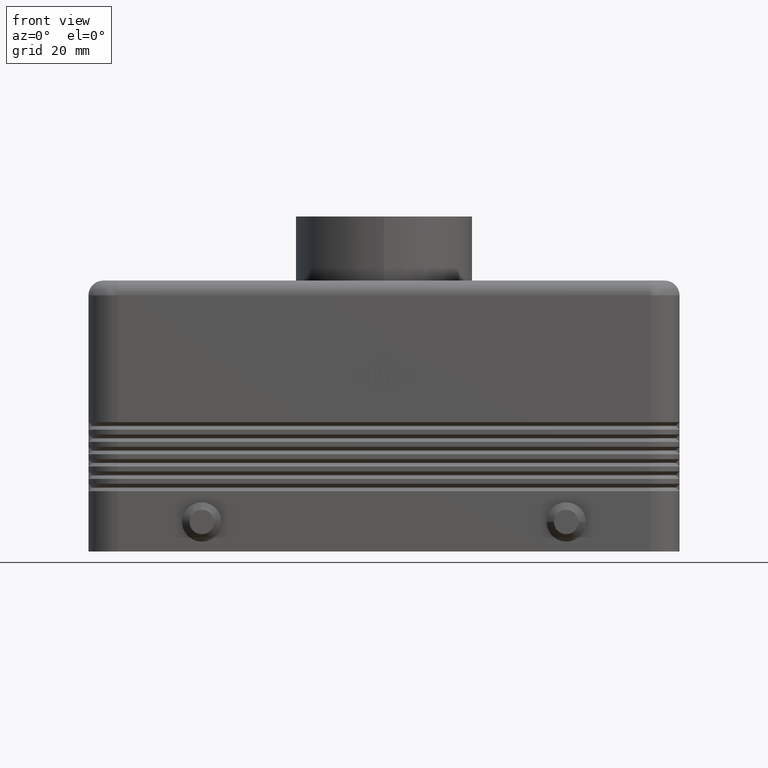
[diagram: clean part render]
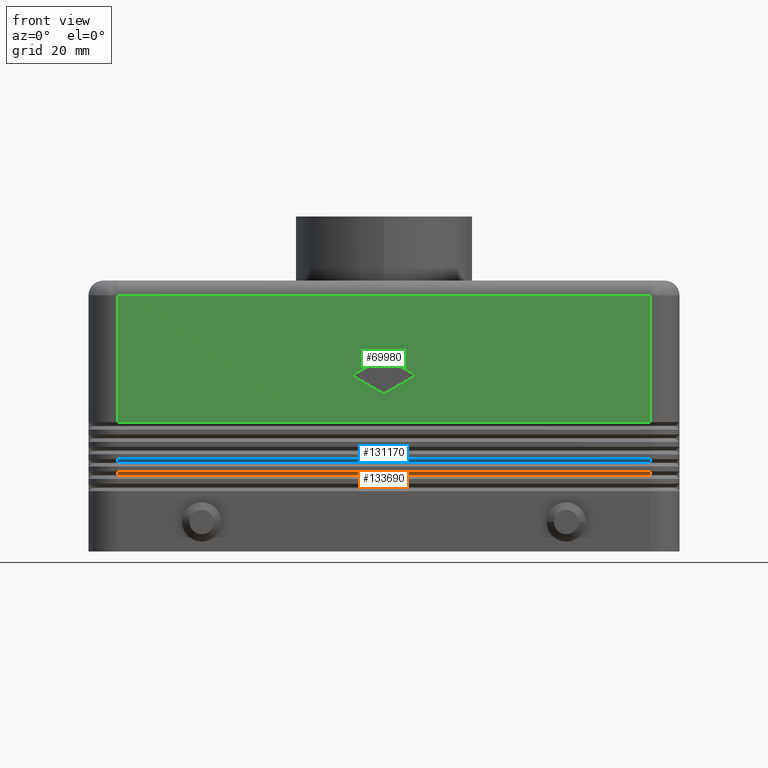
[diagram: same view with three faces highlighted in distinct colors, each labeled with its STEP entity id]
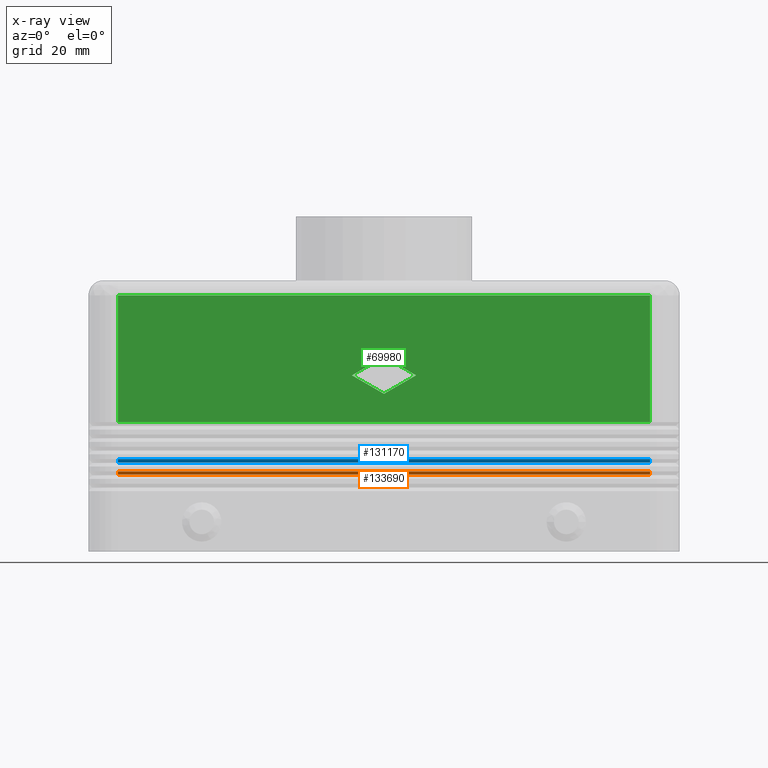
[diagram: x-ray of the same camera — body ghosted, the three highlighted faces saturated]
A machine part, front view with three faces highlighted in distinct colors.
The next image is the same camera in x-ray (body ghosted, the three faces saturated) — at least one of them is partly hidden behind the body in this view.
Their STEP definitions:

[orange] entity #133690 — the highlighted planar face has unit normal (0, -0.7071, -0.7071).
#4090=CARTESIAN_POINT('',(54.,-20.8,15.55));
#4100=DIRECTION('',(-1.435513E-14,-0.707106781186556,0.707106781186539))
;
#4110=VECTOR('',#4100,0.989949493661183);
#4120=LINE('',#4090,#4110);
#4130=CARTESIAN_POINT('',(54.,-20.8,15.55));
#4140=VERTEX_POINT('',#4130);
#4150=CARTESIAN_POINT('',(54.,-21.5,16.25));
#4160=VERTEX_POINT('',#4150);
#4170=EDGE_CURVE('',#4140,#4160,#4120,.T.);
#4730=CARTESIAN_POINT('',(-54.,-21.5,16.25));
#4740=VERTEX_POINT('',#4730);
#4770=CARTESIAN_POINT('',(-54.,-21.5,16.25));
#4780=DIRECTION('',(-7.177566E-15,0.707106781186546,-0.707106781186549))
;
#4790=VECTOR('',#4780,0.989949493661168);
#4800=LINE('',#4770,#4790);
#4810=CARTESIAN_POINT('',(-54.,-20.8,15.55));
#4820=VERTEX_POINT('',#4810);
#4830=EDGE_CURVE('',#4740,#4820,#4800,.T.);
#58120=CARTESIAN_POINT('',(-54.,-20.8,15.55));
#58130=DIRECTION('',(1.,0.,0.));
#58140=VECTOR('',#58130,108.);
#58150=LINE('',#58120,#58140);
#58160=EDGE_CURVE('',#4820,#4140,#58150,.T.);
#130580=CARTESIAN_POINT('',(54.,-21.5,16.25));
#130590=DIRECTION('',(-1.,0.,0.));
#130600=VECTOR('',#130590,108.);
#130610=LINE('',#130580,#130600);
#130620=EDGE_CURVE('',#4160,#4740,#130610,.T.);
#133580=CARTESIAN_POINT('',(4.857226E-15,-21.15,15.9));
#133590=DIRECTION('',(4.570837E-34,-0.70710678118655,-0.707106781186545)
);
#133600=DIRECTION('',(-1.,-3.23206983839839E-34,-3.23206983839836E-34));
#133610=AXIS2_PLACEMENT_3D('',#133580,#133590,#133600);
#133620=PLANE('',#133610);
#133630=ORIENTED_EDGE('',*,*,#130620,.T.);
#133640=ORIENTED_EDGE('',*,*,#4170,.T.);
#133650=ORIENTED_EDGE('',*,*,#58160,.T.);
#133660=ORIENTED_EDGE('',*,*,#4830,.T.);
#133670=EDGE_LOOP('',(#133660,#133650,#133640,#133630));
#133680=FACE_OUTER_BOUND('',#133670,.T.);
#133690=ADVANCED_FACE('',(#133680),#133620,.T.);

[blue] entity #131170 — the highlighted planar face has unit normal (0, -0.7071, -0.7071).
#6630=CARTESIAN_POINT('',(54.,-20.8,18.05));
#6640=DIRECTION('',(-1.435513E-14,-0.707106781186556,0.707106781186539))
;
#6650=VECTOR('',#6640,0.989949493661183);
#6660=LINE('',#6630,#6650);
#6670=CARTESIAN_POINT('',(54.,-20.8,18.05));
#6680=VERTEX_POINT('',#6670);
#6690=CARTESIAN_POINT('',(54.,-21.5,18.75));
#6700=VERTEX_POINT('',#6690);
#6710=EDGE_CURVE('',#6680,#6700,#6660,.T.);
#7270=CARTESIAN_POINT('',(-54.,-21.5,18.75));
#7280=VERTEX_POINT('',#7270);
#7310=CARTESIAN_POINT('',(-54.,-21.5,18.75));
#7320=DIRECTION('',(-7.177566E-15,0.707106781186546,-0.707106781186549))
;
#7330=VECTOR('',#7320,0.989949493661168);
#7340=LINE('',#7310,#7330);
#7350=CARTESIAN_POINT('',(-54.,-20.8,18.05));
#7360=VERTEX_POINT('',#7350);
#7370=EDGE_CURVE('',#7280,#7360,#7340,.T.);
#62430=CARTESIAN_POINT('',(-54.,-20.8,18.05));
#62440=DIRECTION('',(1.,0.,0.));
#62450=VECTOR('',#62440,108.);
#62460=LINE('',#62430,#62450);
#62470=EDGE_CURVE('',#7360,#6680,#62460,.T.);
#127800=CARTESIAN_POINT('',(54.,-21.5,18.75));
#127810=DIRECTION('',(-1.,0.,0.));
#127820=VECTOR('',#127810,108.);
#127830=LINE('',#127800,#127820);
#127840=EDGE_CURVE('',#6700,#7280,#127830,.T.);
#131060=CARTESIAN_POINT('',(4.857226E-15,-21.15,18.4));
#131070=DIRECTION('',(4.570837E-34,-0.70710678118655,-0.707106781186545)
);
#131080=DIRECTION('',(-1.,-3.23206983839839E-34,-3.23206983839836E-34));
#131090=AXIS2_PLACEMENT_3D('',#131060,#131070,#131080);
#131100=PLANE('',#131090);
#131110=ORIENTED_EDGE('',*,*,#127840,.T.);
#131120=ORIENTED_EDGE('',*,*,#6710,.T.);
#131130=ORIENTED_EDGE('',*,*,#62470,.T.);
#131140=ORIENTED_EDGE('',*,*,#7370,.T.);
#131150=EDGE_LOOP('',(#131140,#131130,#131120,#131110));
#131160=FACE_OUTER_BOUND('',#131150,.T.);
#131170=ADVANCED_FACE('',(#131160),#131100,.T.);

[green] entity #69980 — the highlighted planar face has unit normal (0, 1, 0).
#14400=CARTESIAN_POINT('',(-54.,-21.5,52.));
#14410=VERTEX_POINT('',#14400);
#14440=CARTESIAN_POINT('',(-54.,-21.5,26.25));
#14450=DIRECTION('',(0.,0.,1.));
#14460=VECTOR('',#14450,25.75);
#14470=LINE('',#14440,#14460);
#14480=CARTESIAN_POINT('',(-54.,-21.5,26.25));
#14490=VERTEX_POINT('',#14480);
#14500=EDGE_CURVE('',#14490,#14410,#14470,.T.);
#14800=CARTESIAN_POINT('',(54.,-21.5,26.25));
#14810=VERTEX_POINT('',#14800);
#40280=CARTESIAN_POINT('',(54.,-21.5,52.));
#40290=DIRECTION('',(0.,0.,-1.));
#40300=VECTOR('',#40290,25.75);
#40310=LINE('',#40280,#40300);
#40320=CARTESIAN_POINT('',(54.,-21.5,52.));
#40330=VERTEX_POINT('',#40320);
#40340=EDGE_CURVE('',#40330,#14810,#40310,.T.);
#42490=CARTESIAN_POINT('',(-54.,-21.5,52.));
#42500=DIRECTION('',(1.,0.,0.));
#42510=VECTOR('',#42500,108.);
#42520=LINE('',#42490,#42510);
#42530=EDGE_CURVE('',#14410,#40330,#42520,.T.);
#57070=CARTESIAN_POINT('',(4.440892E-15,-21.5,39.4985897222317));
#57080=VERTEX_POINT('',#57070);
#57130=CARTESIAN_POINT('',(4.440892E-15,-21.5,39.4985897222317));
#57140=DIRECTION('',(0.866281716710862,0.,-0.499555789969931));
#57150=VECTOR('',#57140,7.5038460117885);
#57160=LINE('',#57130,#57150);
#57170=CARTESIAN_POINT('',(6.5004446050261,-21.5,35.75));
#57180=VERTEX_POINT('',#57170);
#57190=EDGE_CURVE('',#57080,#57180,#57160,.T.);
#61710=CARTESIAN_POINT('',(6.5004446050261,-21.5,35.75));
#61720=DIRECTION('',(-0.866281716710862,0.,-0.499555789969932));
#61730=VECTOR('',#61720,7.5038460117885);
#61740=LINE('',#61710,#61730);
#61750=CARTESIAN_POINT('',(4.440892E-15,-21.5,32.0014102777683));
#61760=VERTEX_POINT('',#61750);
#61770=EDGE_CURVE('',#57180,#61760,#61740,.T.);
#69390=CARTESIAN_POINT('',(4.440892E-15,-21.5,32.0014102777683));
#69400=DIRECTION('',(-0.866281716710862,0.,0.499555789969932));
#69410=VECTOR('',#69400,7.5038460117885);
#69420=LINE('',#69390,#69410);
#69430=CARTESIAN_POINT('',(-6.50044460502609,-21.5,35.75));
#69440=VERTEX_POINT('',#69430);
#69450=EDGE_CURVE('',#61760,#69440,#69420,.T.);
#69710=CARTESIAN_POINT('',(-1.110223E-15,-21.5,27.5));
#69720=DIRECTION('',(0.,1.,0.));
#69730=DIRECTION('',(0.,0.,1.));
#69740=AXIS2_PLACEMENT_3D('',#69710,#69720,#69730);
#69750=PLANE('',#69740);
#69760=ORIENTED_EDGE('',*,*,#40340,.F.);
#69770=CARTESIAN_POINT('',(54.,-21.5,26.25));
#69780=DIRECTION('',(-1.,0.,0.));
#69790=VECTOR('',#69780,108.);
#69800=LINE('',#69770,#69790);
#69810=EDGE_CURVE('',#14810,#14490,#69800,.T.);
#69820=ORIENTED_EDGE('',*,*,#69810,.F.);
#69830=ORIENTED_EDGE('',*,*,#14500,.F.);
#69840=ORIENTED_EDGE('',*,*,#42530,.F.);
#69850=EDGE_LOOP('',(#69840,#69830,#69820,#69760));
#69860=FACE_OUTER_BOUND('',#69850,.T.);
#69870=ORIENTED_EDGE('',*,*,#61770,.T.);
#69880=ORIENTED_EDGE('',*,*,#57190,.T.);
#69890=CARTESIAN_POINT('',(-6.50044460502609,-21.5,35.75));
#69900=DIRECTION('',(0.866281716710862,0.,0.499555789969931));
#69910=VECTOR('',#69900,7.5038460117885);
#69920=LINE('',#69890,#69910);
#69930=EDGE_CURVE('',#69440,#57080,#69920,.T.);
#69940=ORIENTED_EDGE('',*,*,#69930,.T.);
#69950=ORIENTED_EDGE('',*,*,#69450,.T.);
#69960=EDGE_LOOP('',(#69950,#69940,#69880,#69870));
#69970=FACE_BOUND('',#69960,.T.);
#69980=ADVANCED_FACE('',(#69860,#69970),#69750,.F.);